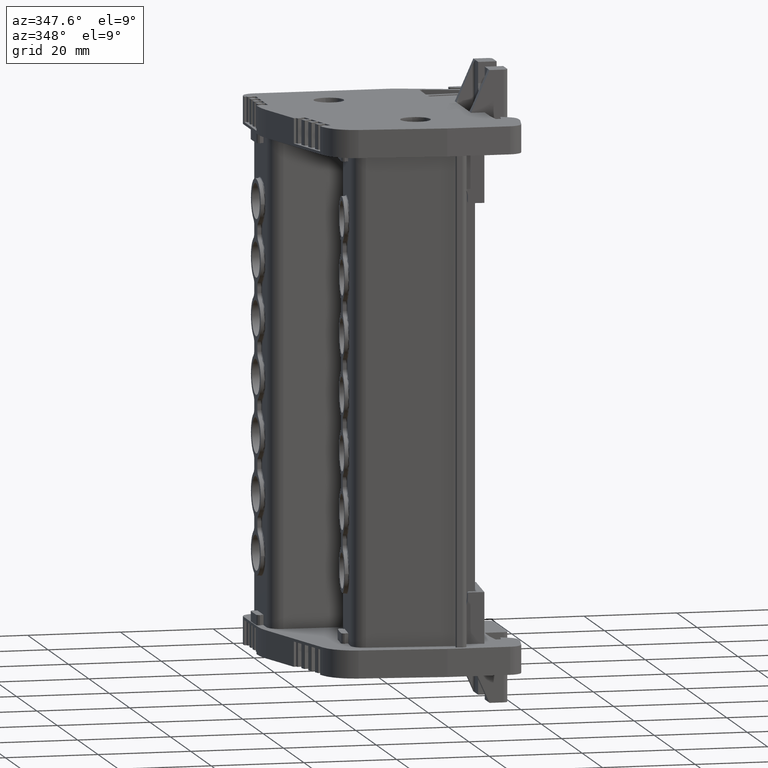
[diagram: clean part render]
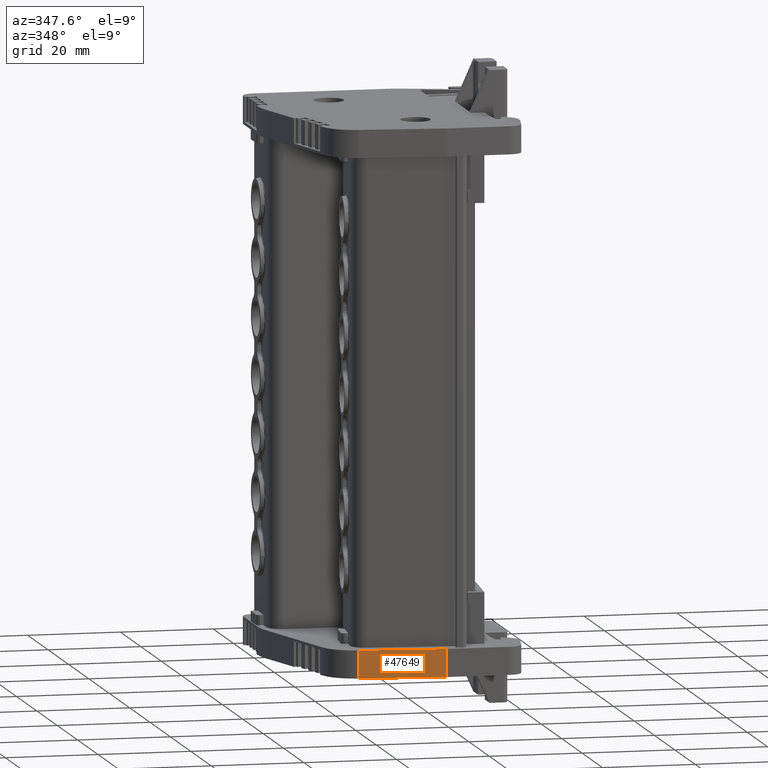
[diagram: same view with one face highlighted and labeled with its STEP entity id]
A machine part, auxiliary view. The second image highlights one B-rep face of the part: STEP entity #47649.
In plain terms, the highlighted planar face has unit normal (0.1045, 0.9945, 0).
Its self-contained STEP definition (entity closure, byte-faithful):
#1383 = CARTESIAN_POINT ( 'NONE',  ( 1898.787632823294900, 756.4429013958290400, 5.998782997044410000 ) ) ;
#1420 = CARTESIAN_POINT ( 'NONE',  ( 1880.230150523130100, 758.3933102740859300, 5.998782997044410000 ) ) ;
#3466 = CARTESIAN_POINT ( 'NONE',  ( 1898.787632823294900, 756.4429013958290400, 0.009543398822096210400 ) ) ;
#3538 = CARTESIAN_POINT ( 'NONE',  ( 1880.230150523130100, 758.3933102740859300, 0.009543398822096210400 ) ) ;
#16305 = VECTOR ( 'NONE', #21606, 1000.000000000000000 ) ;
#21036 = LINE ( 'NONE', #21039, #22131 ) ;
#21039 = CARTESIAN_POINT ( 'NONE',  ( 1898.787632823294900, 756.4429013958290400, 0.009543398822096210400 ) ) ;
#21041 = DIRECTION ( 'NONE',  ( 0.9945222358008737300, -0.1045252242170821600, 0.0000000000000000000 ) ) ;
#21295 = LINE ( 'NONE', #21305, #22189 ) ;
#21305 = CARTESIAN_POINT ( 'NONE',  ( 1880.230150523130100, 758.3933102740859300, 5.998782997044410000 ) ) ;
#21315 = DIRECTION ( 'NONE',  ( 0.0000000000000000000, 0.0000000000000000000, -1.000000000000000000 ) ) ;
#21600 = CARTESIAN_POINT ( 'NONE',  ( 1898.787632823294900, 756.4429013958290400, 5.998782997044410000 ) ) ;
#21606 = DIRECTION ( 'NONE',  ( 0.0000000000000000000, 0.0000000000000000000, -1.000000000000000000 ) ) ;
#21629 = LINE ( 'NONE', #21600, #16305 ) ;
#22131 = VECTOR ( 'NONE', #21041, 1000.000000000000100 ) ;
#22189 = VECTOR ( 'NONE', #21315, 1000.000000000000000 ) ;
#33406 = EDGE_LOOP ( 'NONE', ( #39238, #39233, #39261, #39254 ) ) ;
#39233 = ORIENTED_EDGE ( 'NONE', *, *, #41539, .T. ) ;
#39238 = ORIENTED_EDGE ( 'NONE', *, *, #47577, .F. ) ;
#39254 = ORIENTED_EDGE ( 'NONE', *, *, #41321, .F. ) ;
#39261 = ORIENTED_EDGE ( 'NONE', *, *, #41462, .T. ) ;
#41321 = EDGE_CURVE ( 'NONE', #58698, #61254, #21629, .T. ) ;
#41462 = EDGE_CURVE ( 'NONE', #61236, #61254, #21036, .T. ) ;
#41539 = EDGE_CURVE ( 'NONE', #58711, #61236, #21295, .T. ) ;
#47577 = EDGE_CURVE ( 'NONE', #58711, #58698, #52694, .T. ) ;
#47649 = ADVANCED_FACE ( 'NONE', ( #56054 ), #56060, .F. ) ;
#52686 = CARTESIAN_POINT ( 'NONE',  ( 1898.385441865505100, 756.4851720445159300, 5.998782997044410000 ) ) ;
#52687 = DIRECTION ( 'NONE',  ( 0.9945222358008705100, -0.1045252242171127600, 0.0000000000000000000 ) ) ;
#52694 = LINE ( 'NONE', #52686, #55320 ) ;
#55320 = VECTOR ( 'NONE', #52687, 1000.000000000000100 ) ;
#55385 = AXIS2_PLACEMENT_3D ( 'NONE', #56043, #56045, #56009 ) ;
#56009 = DIRECTION ( 'NONE',  ( -0.9945222358008737300, 0.1045252242170821600, 0.0000000000000000000 ) ) ;
#56043 = CARTESIAN_POINT ( 'NONE',  ( 1898.787632823294900, 756.4429013958290400, 5.998782997044410000 ) ) ;
#56045 = DIRECTION ( 'NONE',  ( 0.1045252242170821600, 0.9945222358008737300, 0.0000000000000000000 ) ) ;
#56054 = FACE_OUTER_BOUND ( 'NONE', #33406, .T. ) ;
#56060 = PLANE ( 'NONE',  #55385 ) ;
#58698 = VERTEX_POINT ( 'NONE', #1383 ) ;
#58711 = VERTEX_POINT ( 'NONE', #1420 ) ;
#61236 = VERTEX_POINT ( 'NONE', #3538 ) ;
#61254 = VERTEX_POINT ( 'NONE', #3466 ) ;